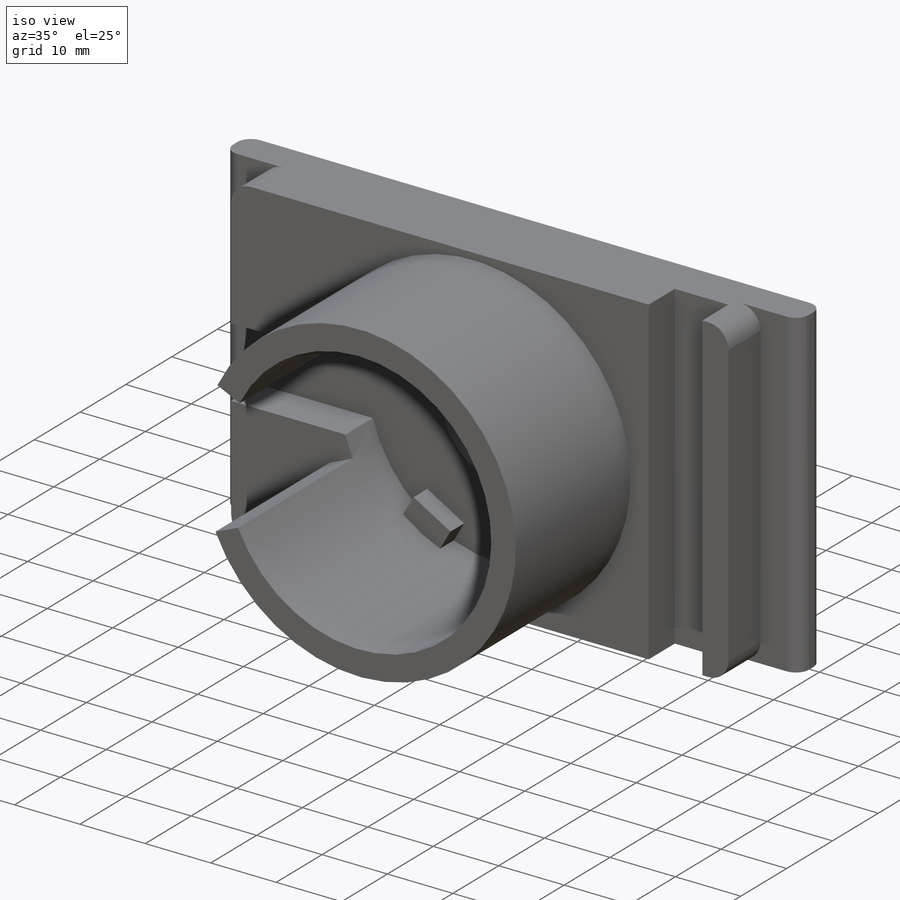
[diagram: iso view]
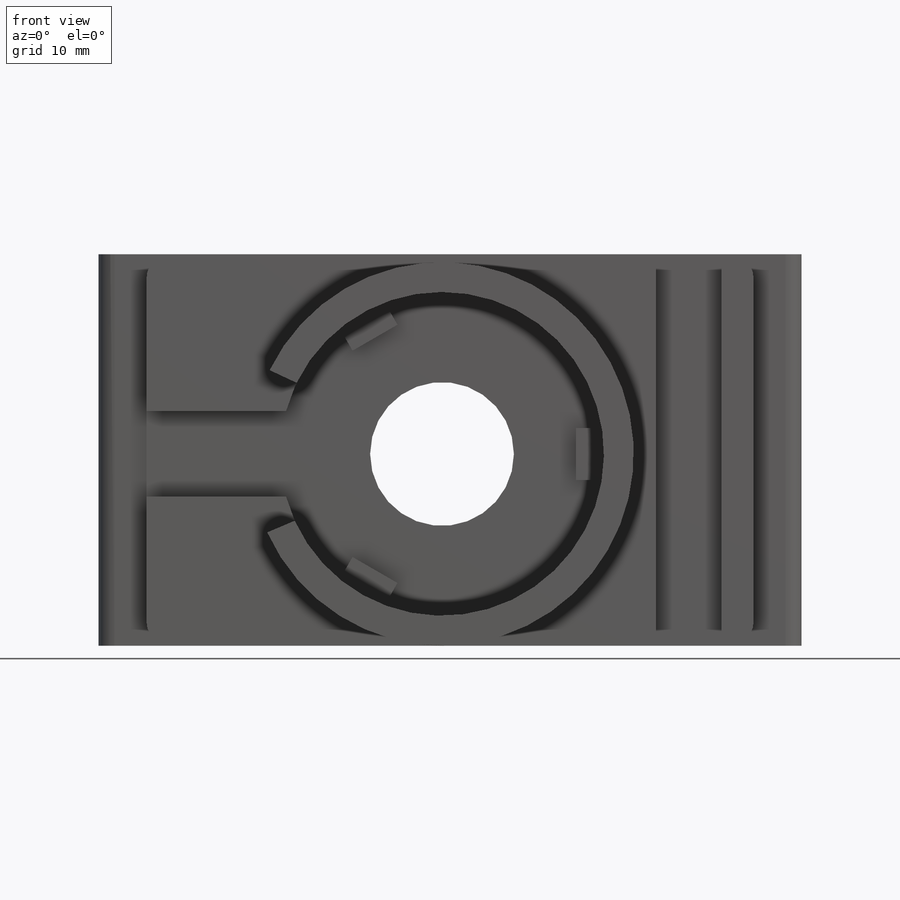
[diagram: front view]
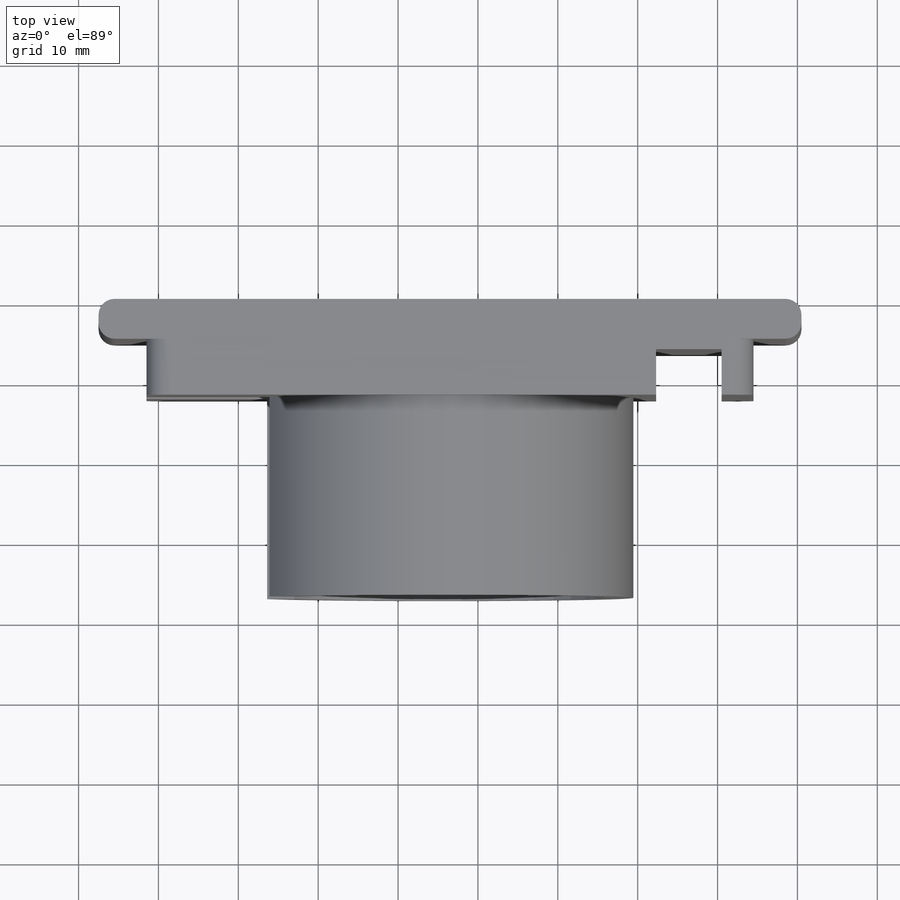
[diagram: top view]
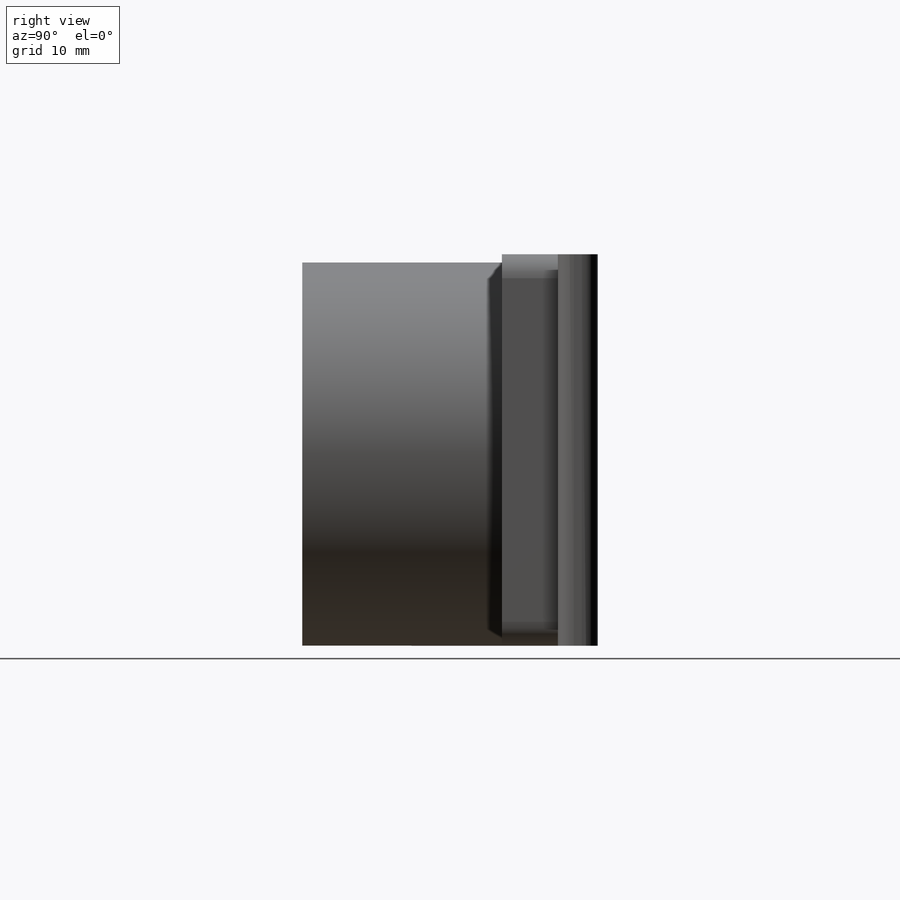
[diagram: right view]
SOLIDWORKS PART (.sldprt)
format: sldprt  version: not decoded by parser v0  size: 481,280 bytes
history: native  units: mm
features: sketch x11, fillet x8, cut_extrude x6, extrude x5, material x1 (+13 scaffold rows collapsed)
feature tree (44):
  scaffold x13  (default folders/planes/origin — collapsed)
  material  "Material <not specified>"
  sketch  "Sketch1"  dims[D1=0.0mm D2=50.0mm D3=65.0mm]
  extrude  "Boss-Extrude1"  Depth=12mm
  sketch  "Sketch2"  dims[c1.DK=40.5mm c1.D2=27.0mm c1.D3=25.0mm c1.D1=20.25mm c1.D4=20.25mm c1.D5=30.0mm c1.D6=10.7mm c1.D7=20.25mm c1.D8=20.25mm c1.D9=6.5mm c1.D10=3.2mm c1.D11=6.5mm c1.D12=~17.099197mm c2.D11=3.0]
  cut_extrude  "Cut-Extrude1"  Depth=6mm
  sketch  "Sketch3"  dims[D2=18.0mm D1=0.0mm]
  cut_extrude  "Cut-Extrude2"  [1 undecoded]
  sketch  "Sketch4"  dims[c1.D2=~42.664852mm c1.D1=0.0mm c2.D2=0.0mm]
  cut_extrude  "Cut-Extrude3"  Depth=3mm
  sketch  "Sketch5"  dims[D1=0.0mm D2=0.0mm D3=0.0mm D4=0.0mm]
  extrude  "Boss-Extrude2"  Depth=13mm
  sketch  "Sketch6"  dims[D1=0.0mm D2=8.2mm D3=0.0mm]
  cut_extrude  "Cut-Extrude4"  Depth=5.7mm
  sketch  "Sketch7"  dims[D1=0.0mm D2=0.0mm D3=0.0mm D4=5.0mm]
  extrude  "Boss-Extrude3"  Depth=5mm
  sketch  "Sketch8"  dims[D1=0.0mm D2=0.0mm D3=0.0mm D4=5.0mm]
  extrude  "Boss-Extrude4"  Depth=5mm
  fillet  "Fillet1"  Radius=2mm
  fillet  "Fillet2"  Radius=2mm
  sketch  "Sketch9"  dims[c1.D1=~57.073717mm c1.D2=~49.075777mm c1.D3=~49.075777mm c1.D4=48.0mm c2.D1=0.0mm c2.D2=0.0mm c2.D3=0.01mm c2.D5=20.0mm c2.D6=24.0mm c2.D7=24.0mm c2.D8=20.0mm]
  extrude  "Boss-Extrude6"  Depth=25mm
  fillet  "Fillet3"  Radius=2mm
  fillet  "Fillet4"  Radius=2mm
  sketch  "Sketch10"  dims[D1=0.0mm D2=0.0mm D3=1.0mm D4=0.0mm D5=0.0mm D6=0.0mm D7=1.0mm D8=0.0mm D9=0.0mm D10=0.0mm D11=0.0mm D12=1.0mm]
  cut_extrude  "Cut-Extrude5"  Depth=7mm
  sketch  "Sketch11"  dims[D1=0.0mm D2=0.0mm D3=0.0mm D4=1.0mm]
  cut_extrude  "Cut-Extrude6"  [1 undecoded]
  fillet  "Fillet5"  Radius=3mm
  fillet  "Fillet6"  Radius=3mm
  fillet  "Fillet7"  Radius=3mm
  fillet  "Fillet8"  Radius=3mm
decode coverage: 28 of 30 modeling features carry decoded parameters
note: ~ marks probable driven/reference dimensions
note: 2 parameter values undecoded
note: suppression state not decoded; provenance and decode notes live in map.json
